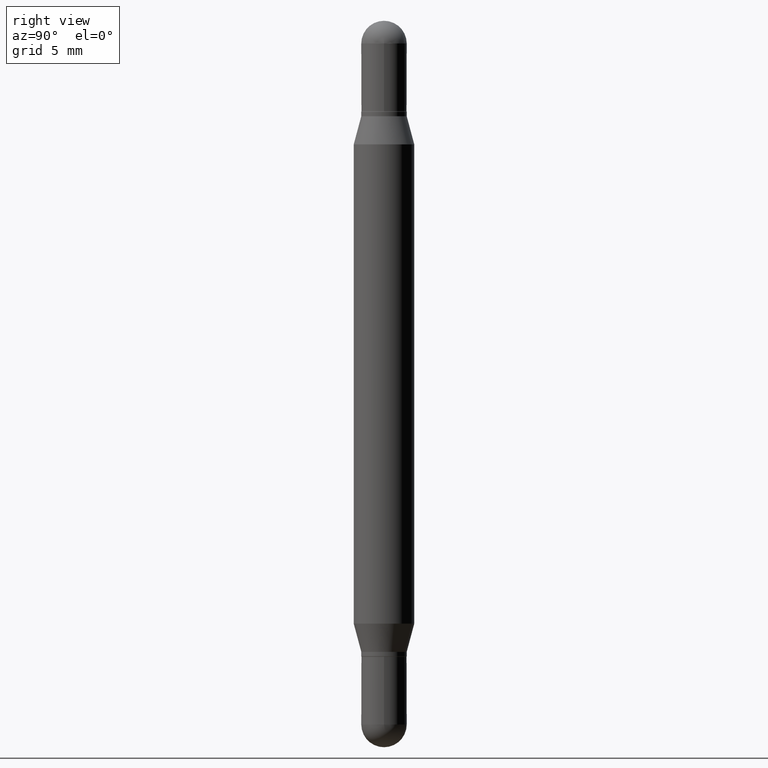
[diagram: clean part render]
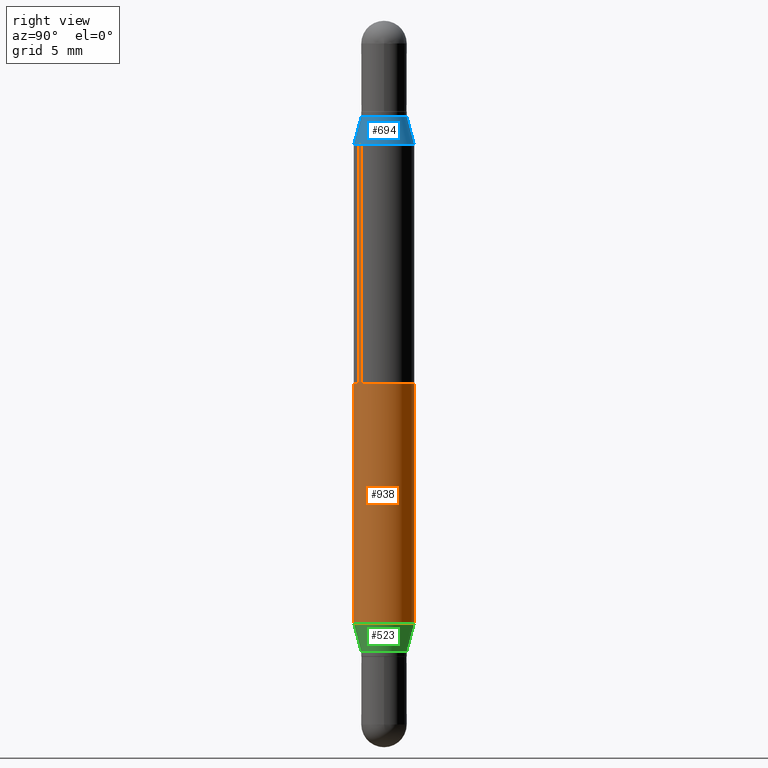
[diagram: same view with three faces highlighted in distinct colors, each labeled with its STEP entity id]
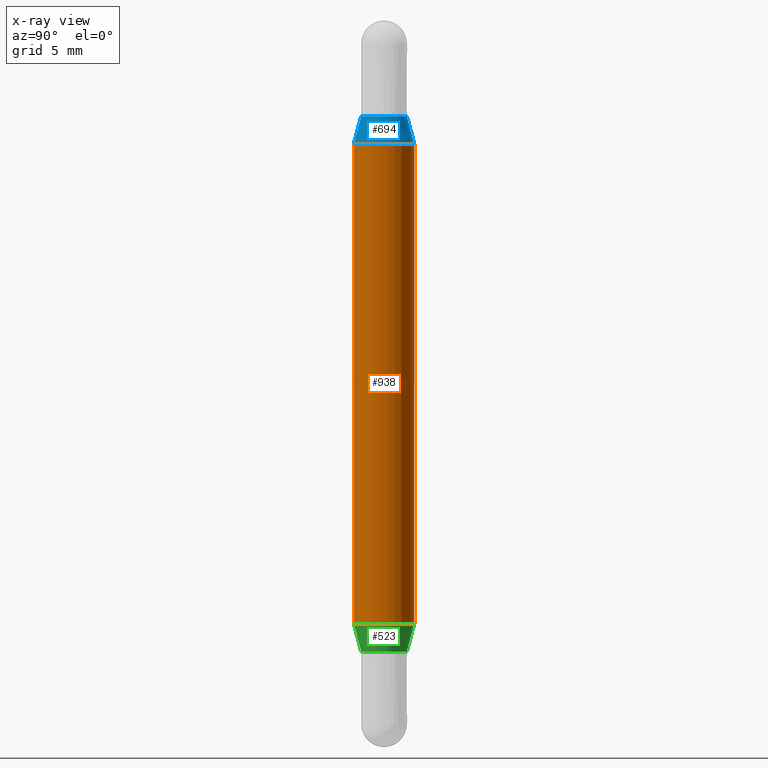
[diagram: x-ray of the same camera — body ghosted, the three highlighted faces saturated]
A machine part, right view with three faces highlighted in distinct colors.
The next image is the same camera in x-ray (body ghosted, the three faces saturated) — at least one of them is partly hidden behind the body in this view.
Their STEP definitions:

[orange] entity #938 — the highlighted cylindrical surface (edge-blend (fillet) strip) has radius 1.5875 mm, axis along (-0, -0, -1).
#12 = CARTESIAN_POINT ( 'NONE',  ( -4.364351673553612490E-16, -0.06250000000000090206, -0.2552199925980755957 ) ) ;
#31 = CARTESIAN_POINT ( 'NONE',  ( 4.287811248607510938E-16, 0.06249999999999910488, -0.2552199925980759843 ) ) ;
#46 = VERTEX_POINT ( 'NONE', #31 ) ;
#54 = EDGE_LOOP ( 'NONE', ( #363, #835, #650, #418 ) ) ;
#87 = VECTOR ( 'NONE', #819, 39.37007874015748143 ) ;
#128 = DIRECTION ( 'NONE',  ( -2.445281584569858182E-29, -3.479346354968757056E-15, -1.000000000000000000 ) ) ;
#137 = CARTESIAN_POINT ( 'NONE',  ( -4.364351673553611504E-16, -0.06250000000000434375, -1.244780007401924404 ) ) ;
#171 = VERTEX_POINT ( 'NONE', #655 ) ;
#216 = CARTESIAN_POINT ( 'NONE',  ( 0.000000000000000000, -5.228321854365732350E-15, -1.500000000000000444 ) ) ;
#253 = VERTEX_POINT ( 'NONE', #137 ) ;
#255 = DIRECTION ( 'NONE',  ( -2.445281584569858182E-29, 3.491749450852216780E-15, 1.000000000000000000 ) ) ;
#298 = CARTESIAN_POINT ( 'NONE',  ( 3.043837628940657870E-29, -8.973010728738630843E-16, -0.2552199925980758177 ) ) ;
#313 = DIRECTION ( 'NONE',  ( 2.445281584569858182E-29, 3.479346354968757056E-15, 1.000000000000000000 ) ) ;
#338 = VECTOR ( 'NONE', #668, 39.37007874015748143 ) ;
#346 = EDGE_CURVE ( 'NONE', #771, #253, #648, .T. ) ;
#363 = ORIENTED_EDGE ( 'NONE', *, *, #709, .F. ) ;
#398 = CYLINDRICAL_SURFACE ( 'NONE', #1071, 0.06250000000000000000 ) ;
#418 = ORIENTED_EDGE ( 'NONE', *, *, #962, .T. ) ;
#507 = CARTESIAN_POINT ( 'NONE',  ( 3.043837628940657870E-29, -4.346459907277488810E-15, -1.244780007401924626 ) ) ;
#519 = AXIS2_PLACEMENT_3D ( 'NONE', #507, #255, #861 ) ;
#552 = CARTESIAN_POINT ( 'NONE',  ( 4.287811248607206733E-16, 0.06249999999999477501, -1.500000000000000666 ) ) ;
#558 = DIRECTION ( 'NONE',  ( -6.982962677686265922E-15, -1.000000000000000000, 4.370956789862821150E-15 ) ) ;
#589 = CARTESIAN_POINT ( 'NONE',  ( -4.364351673553916201E-16, -0.06250000000000521805, -1.500000000000000222 ) ) ;
#648 = LINE ( 'NONE', #589, #338 ) ;
#650 = ORIENTED_EDGE ( 'NONE', *, *, #346, .T. ) ;
#655 = CARTESIAN_POINT ( 'NONE',  ( 4.287811248607390144E-16, 0.06249999999999565625, -1.244780007401924848 ) ) ;
#668 = DIRECTION ( 'NONE',  ( -2.445281584569858463E-29, -3.479346354968757451E-15, -1.000000000000000000 ) ) ;
#709 = EDGE_CURVE ( 'NONE', #46, #171, #1088, .T. ) ;
#721 = EDGE_CURVE ( 'NONE', #771, #46, #924, .T. ) ;
#771 = VERTEX_POINT ( 'NONE', #12 ) ;
#819 = DIRECTION ( 'NONE',  ( -2.445281584569858463E-29, -3.479346354968757451E-15, -1.000000000000000000 ) ) ;
#835 = ORIENTED_EDGE ( 'NONE', *, *, #721, .F. ) ;
#861 = DIRECTION ( 'NONE',  ( -6.982962677686265922E-15, -1.000000000000000000, 4.370956789862821150E-15 ) ) ;
#883 = CIRCLE ( 'NONE', #519, 0.06250000000000000000 ) ;
#917 = FACE_OUTER_BOUND ( 'NONE', #54, .T. ) ;
#924 = CIRCLE ( 'NONE', #1026, 0.06250000000000000000 ) ;
#938 = ADVANCED_FACE ( 'NONE', ( #917 ), #398, .T. ) ;
#962 = EDGE_CURVE ( 'NONE', #253, #171, #883, .T. ) ;
#1008 = DIRECTION ( 'NONE',  ( -6.982962677686265922E-15, -1.000000000000000000, 3.278217592397115862E-15 ) ) ;
#1026 = AXIS2_PLACEMENT_3D ( 'NONE', #298, #313, #1008 ) ;
#1071 = AXIS2_PLACEMENT_3D ( 'NONE', #216, #128, #558 ) ;
#1088 = LINE ( 'NONE', #552, #87 ) ;

[blue] entity #694 — the highlighted conical surface has half-angle 15 deg.
#11 = DIRECTION ( 'NONE',  ( -6.982962677686265133E-15, -1.000000000000000000, 3.640522379616583431E-15 ) ) ;
#56 = DIRECTION ( 'NONE',  ( -6.982962677686265922E-15, -1.000000000000000000, 3.278217592397115862E-15 ) ) ;
#77 = VERTEX_POINT ( 'NONE', #921 ) ;
#79 = CARTESIAN_POINT ( 'NONE',  ( 3.217573560955141730E-16, 0.04689999999999894947, -0.1970000000000002860 ) ) ;
#121 = DIRECTION ( 'NONE',  ( 2.445281584569858182E-29, 3.479346354968757056E-15, 1.000000000000000000 ) ) ;
#133 = CARTESIAN_POINT ( 'NONE',  ( 3.043837628940657870E-29, -8.973010728738630843E-16, -0.2552199925980758177 ) ) ;
#143 = VERTEX_POINT ( 'NONE', #320 ) ;
#158 = EDGE_LOOP ( 'NONE', ( #945, #1085, #1041, #178 ) ) ;
#178 = ORIENTED_EDGE ( 'NONE', *, *, #597, .T. ) ;
#204 = DIRECTION ( 'NONE',  ( -2.445281584569858182E-29, -3.479346354968757056E-15, -1.000000000000000000 ) ) ;
#221 = CARTESIAN_POINT ( 'NONE',  ( 3.217573560955143209E-16, 0.04689999999999894947, -0.1970000000000002860 ) ) ;
#256 = DIRECTION ( 'NONE',  ( -1.807323732225328562E-15, -0.2588190451025247363, -0.9659258262890673130 ) ) ;
#320 = CARTESIAN_POINT ( 'NONE',  ( -4.364351673553612490E-16, -0.06250000000000090206, -0.2552199925980755957 ) ) ;
#336 = LINE ( 'NONE', #79, #551 ) ;
#371 = DIRECTION ( 'NONE',  ( -6.982962677686265133E-15, -1.000000000000000000, 3.640522379616583431E-15 ) ) ;
#422 = CIRCLE ( 'NONE', #854, 0.06250000000000000000 ) ;
#426 = DIRECTION ( 'NONE',  ( 1.775627540710963525E-15, 0.2588190451025179639, -0.9659258262890690894 ) ) ;
#437 = DIRECTION ( 'NONE',  ( 2.445281584569858182E-29, 3.479346354968757056E-15, 1.000000000000000000 ) ) ;
#457 = EDGE_CURVE ( 'NONE', #1056, #143, #874, .T. ) ;
#551 = VECTOR ( 'NONE', #426, 39.37007874015748854 ) ;
#557 = CARTESIAN_POINT ( 'NONE',  ( 3.186201904694526479E-29, -6.947335538414400244E-16, -0.1970000000000001195 ) ) ;
#560 = EDGE_CURVE ( 'NONE', #1056, #702, #983, .T. ) ;
#597 = EDGE_CURVE ( 'NONE', #143, #77, #422, .T. ) ;
#620 = AXIS2_PLACEMENT_3D ( 'NONE', #557, #204, #371 ) ;
#694 = ADVANCED_FACE ( 'NONE', ( #1080 ), #1116, .T. ) ;
#702 = VERTEX_POINT ( 'NONE', #221 ) ;
#733 = AXIS2_PLACEMENT_3D ( 'NONE', #880, #437, #11 ) ;
#770 = CARTESIAN_POINT ( 'NONE',  ( -3.275009495834514884E-16, -0.04690000000000033031, -0.1969999999999999529 ) ) ;
#854 = AXIS2_PLACEMENT_3D ( 'NONE', #133, #121, #56 ) ;
#869 = VECTOR ( 'NONE', #256, 39.37007874015748854 ) ;
#874 = LINE ( 'NONE', #770, #869 ) ;
#880 = CARTESIAN_POINT ( 'NONE',  ( 3.186201904694526479E-29, -6.947335538414400244E-16, -0.1970000000000001195 ) ) ;
#921 = CARTESIAN_POINT ( 'NONE',  ( 4.287811248607510938E-16, 0.06249999999999910488, -0.2552199925980759843 ) ) ;
#945 = ORIENTED_EDGE ( 'NONE', *, *, #971, .F. ) ;
#955 = CARTESIAN_POINT ( 'NONE',  ( -3.275009495834514884E-16, -0.04690000000000033031, -0.1969999999999999529 ) ) ;
#971 = EDGE_CURVE ( 'NONE', #702, #77, #336, .T. ) ;
#983 = CIRCLE ( 'NONE', #733, 0.04689999999999964336 ) ;
#1041 = ORIENTED_EDGE ( 'NONE', *, *, #457, .T. ) ;
#1056 = VERTEX_POINT ( 'NONE', #955 ) ;
#1080 = FACE_OUTER_BOUND ( 'NONE', #158, .T. ) ;
#1085 = ORIENTED_EDGE ( 'NONE', *, *, #560, .F. ) ;
#1116 = CONICAL_SURFACE ( 'NONE', #620, 0.04689999999999964336, 0.2617993877991500740 ) ;

[green] entity #523 — the highlighted conical surface has half-angle 15 deg.
#3 = ORIENTED_EDGE ( 'NONE', *, *, #962, .F. ) ;
#75 = EDGE_CURVE ( 'NONE', #714, #95, #189, .T. ) ;
#95 = VERTEX_POINT ( 'NONE', #579 ) ;
#132 = ORIENTED_EDGE ( 'NONE', *, *, #75, .T. ) ;
#137 = CARTESIAN_POINT ( 'NONE',  ( -4.364351673553611504E-16, -0.06250000000000434375, -1.244780007401924404 ) ) ;
#171 = VERTEX_POINT ( 'NONE', #655 ) ;
#187 = DIRECTION ( 'NONE',  ( 1.839019923739598738E-15, 0.2588190451025247363, 0.9659258262890673130 ) ) ;
#188 = ORIENTED_EDGE ( 'NONE', *, *, #341, .F. ) ;
#189 = CIRCLE ( 'NONE', #448, 0.04689999999999964336 ) ;
#253 = VERTEX_POINT ( 'NONE', #137 ) ;
#255 = DIRECTION ( 'NONE',  ( -2.445281584569858182E-29, 3.491749450852216780E-15, 1.000000000000000000 ) ) ;
#296 = CARTESIAN_POINT ( 'NONE',  ( 3.186201904694526479E-29, -4.549749534460439956E-15, -1.303000000000000380 ) ) ;
#341 = EDGE_CURVE ( 'NONE', #714, #253, #840, .T. ) ;
#368 = LINE ( 'NONE', #877, #805 ) ;
#448 = AXIS2_PLACEMENT_3D ( 'NONE', #296, #725, #478 ) ;
#478 = DIRECTION ( 'NONE',  ( -6.982962677686265133E-15, -1.000000000000000000, 5.824835807386533174E-15 ) ) ;
#479 = EDGE_LOOP ( 'NONE', ( #132, #940, #3, #188 ) ) ;
#507 = CARTESIAN_POINT ( 'NONE',  ( 3.043837628940657870E-29, -4.346459907277488810E-15, -1.244780007401924626 ) ) ;
#519 = AXIS2_PLACEMENT_3D ( 'NONE', #507, #255, #861 ) ;
#523 = ADVANCED_FACE ( 'NONE', ( #1042 ), #897, .T. ) ;
#535 = EDGE_CURVE ( 'NONE', #95, #171, #368, .T. ) ;
#579 = CARTESIAN_POINT ( 'NONE',  ( 3.332445430715164513E-16, 0.04689999999999509145, -1.303000000000000602 ) ) ;
#626 = DIRECTION ( 'NONE',  ( -2.445281584569858182E-29, 3.491749450852216780E-15, 1.000000000000000000 ) ) ;
#655 = CARTESIAN_POINT ( 'NONE',  ( 4.287811248607390144E-16, 0.06249999999999565625, -1.244780007401924848 ) ) ;
#656 = DIRECTION ( 'NONE',  ( -1.807323732225328562E-15, -0.2588190451025179639, 0.9659258262890690894 ) ) ;
#698 = DIRECTION ( 'NONE',  ( -6.982962677686265133E-15, -1.000000000000000000, 5.824835807386533174E-15 ) ) ;
#699 = AXIS2_PLACEMENT_3D ( 'NONE', #1053, #626, #698 ) ;
#714 = VERTEX_POINT ( 'NONE', #838 ) ;
#725 = DIRECTION ( 'NONE',  ( -2.445281584569858182E-29, 3.491749450852216780E-15, 1.000000000000000000 ) ) ;
#805 = VECTOR ( 'NONE', #187, 39.37007874015748854 ) ;
#826 = VECTOR ( 'NONE', #656, 39.37007874015748854 ) ;
#838 = CARTESIAN_POINT ( 'NONE',  ( -3.275009495834514884E-16, -0.04690000000000419528, -1.302999999999999936 ) ) ;
#840 = LINE ( 'NONE', #929, #826 ) ;
#861 = DIRECTION ( 'NONE',  ( -6.982962677686265922E-15, -1.000000000000000000, 4.370956789862821150E-15 ) ) ;
#877 = CARTESIAN_POINT ( 'NONE',  ( 3.332445430715162048E-16, 0.04689999999999509145, -1.303000000000000602 ) ) ;
#883 = CIRCLE ( 'NONE', #519, 0.06250000000000000000 ) ;
#897 = CONICAL_SURFACE ( 'NONE', #699, 0.04689999999999964336, 0.2617993877991500740 ) ;
#929 = CARTESIAN_POINT ( 'NONE',  ( -3.275009495834514884E-16, -0.04690000000000419528, -1.302999999999999936 ) ) ;
#940 = ORIENTED_EDGE ( 'NONE', *, *, #535, .T. ) ;
#962 = EDGE_CURVE ( 'NONE', #253, #171, #883, .T. ) ;
#1042 = FACE_OUTER_BOUND ( 'NONE', #479, .T. ) ;
#1053 = CARTESIAN_POINT ( 'NONE',  ( 3.186201904694526479E-29, -4.549749534460439956E-15, -1.303000000000000380 ) ) ;